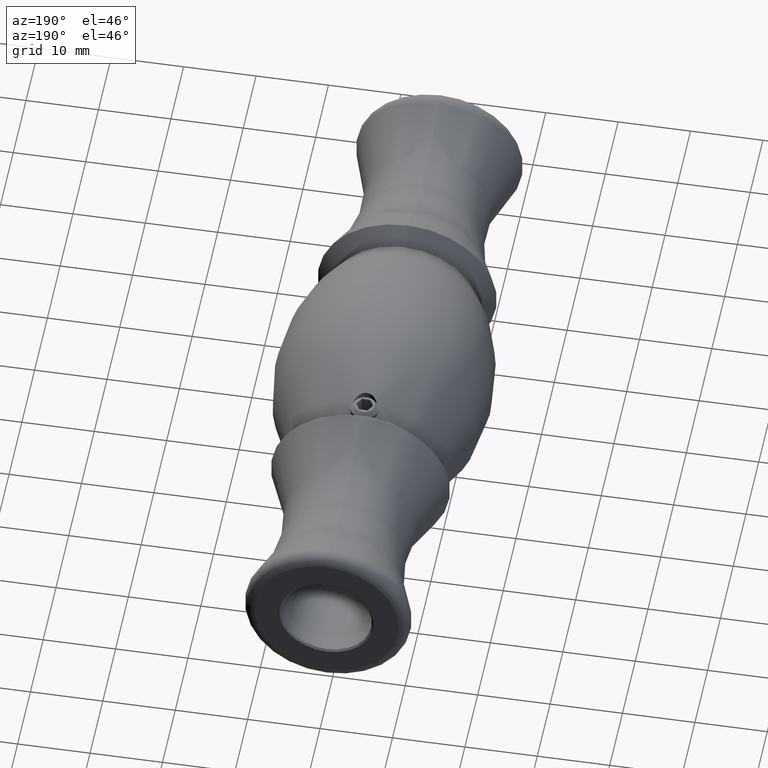
[diagram: clean part render]
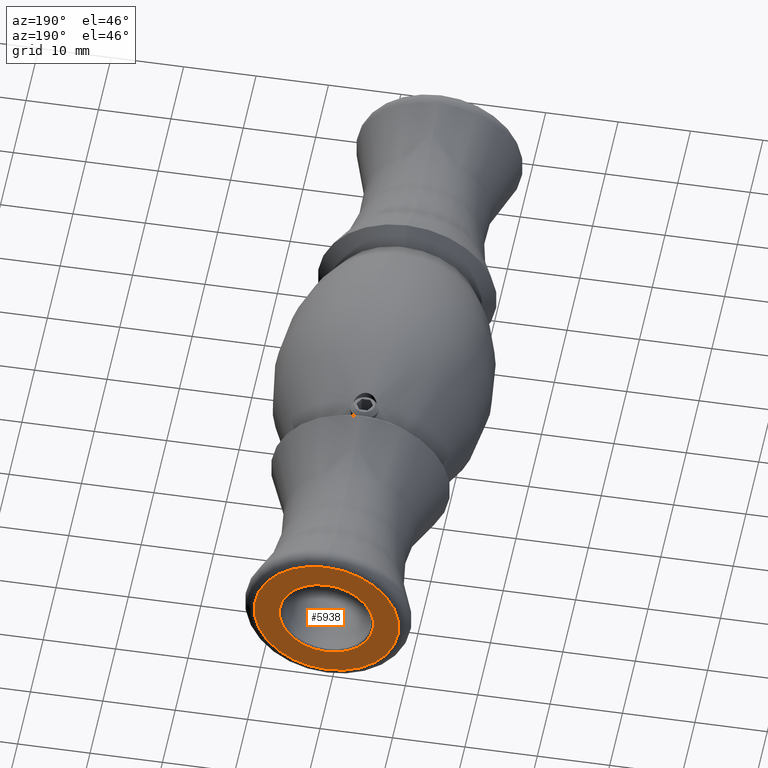
[diagram: same view with one face highlighted and labeled with its STEP entity id]
A machine part, auxiliary view. The second image highlights one B-rep face of the part: STEP entity #5938.
In plain terms, the highlighted planar face has unit normal (0, -1, 0).
Its self-contained STEP definition (entity closure, byte-faithful):
#455 = EDGE_CURVE ( 'NONE', #9387, #9387, #1386, .T. ) ;
#914 = AXIS2_PLACEMENT_3D ( 'NONE', #2164, #1299, #8884 ) ;
#1013 = CARTESIAN_POINT ( 'NONE',  ( 7.426761390167614600E-015, 45.00000000000002100, 0.0000000000000000000 ) ) ;
#1170 = FACE_OUTER_BOUND ( 'NONE', #2193, .T. ) ;
#1299 = DIRECTION ( 'NONE',  ( 0.0000000000000000000, -1.000000000000000000, 0.0000000000000000000 ) ) ;
#1386 = CIRCLE ( 'NONE', #914, 6.500000000000087000 ) ;
#1504 = PLANE ( 'NONE',  #11300 ) ;
#2164 = CARTESIAN_POINT ( 'NONE',  ( 6.938893903907228400E-015, 45.00000000000001400, 0.0000000000000000000 ) ) ;
#2193 = EDGE_LOOP ( 'NONE', ( #6590 ) ) ;
#2969 = DIRECTION ( 'NONE',  ( 0.0000000000000000000, 0.0000000000000000000, 1.000000000000000000 ) ) ;
#3115 = FACE_BOUND ( 'NONE', #7279, .T. ) ;
#4086 = AXIS2_PLACEMENT_3D ( 'NONE', #1013, #6794, #2969 ) ;
#4403 = CARTESIAN_POINT ( 'NONE',  ( 7.426761390167614600E-015, 45.00000000000001400, 0.0000000000000000000 ) ) ;
#5741 = EDGE_CURVE ( 'NONE', #10427, #10427, #9127, .T. ) ;
#5938 = ADVANCED_FACE ( 'NONE', ( #3115, #1170 ), #1504, .F. ) ;
#6485 = CARTESIAN_POINT ( 'NONE',  ( 6.938893903907228400E-015, 45.00000000000001400, -6.500000000000087000 ) ) ;
#6590 = ORIENTED_EDGE ( 'NONE', *, *, #5741, .T. ) ;
#6794 = DIRECTION ( 'NONE',  ( -0.0000000000000000000, 1.000000000000000000, -0.0000000000000000000 ) ) ;
#7279 = EDGE_LOOP ( 'NONE', ( #7400 ) ) ;
#7400 = ORIENTED_EDGE ( 'NONE', *, *, #455, .T. ) ;
#7420 = DIRECTION ( 'NONE',  ( 0.0000000000000000000, -0.0000000000000000000, -1.000000000000000000 ) ) ;
#7624 = CARTESIAN_POINT ( 'NONE',  ( 7.426761390167614600E-015, 45.00000000000002100, 10.00000000000007600 ) ) ;
#8884 = DIRECTION ( 'NONE',  ( 0.0000000000000000000, 0.0000000000000000000, -1.000000000000000000 ) ) ;
#9127 = CIRCLE ( 'NONE', #4086, 10.00000000000007600 ) ;
#9387 = VERTEX_POINT ( 'NONE', #6485 ) ;
#10427 = VERTEX_POINT ( 'NONE', #7624 ) ;
#11084 = DIRECTION ( 'NONE',  ( 0.0000000000000000000, -1.000000000000000000, 0.0000000000000000000 ) ) ;
#11300 = AXIS2_PLACEMENT_3D ( 'NONE', #4403, #11084, #7420 ) ;